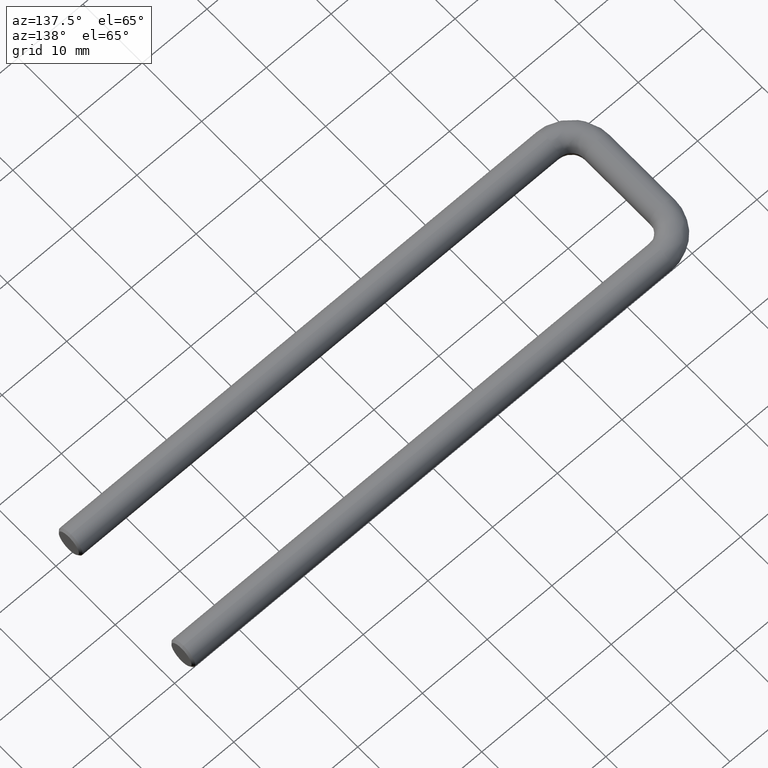
[diagram: clean part render]
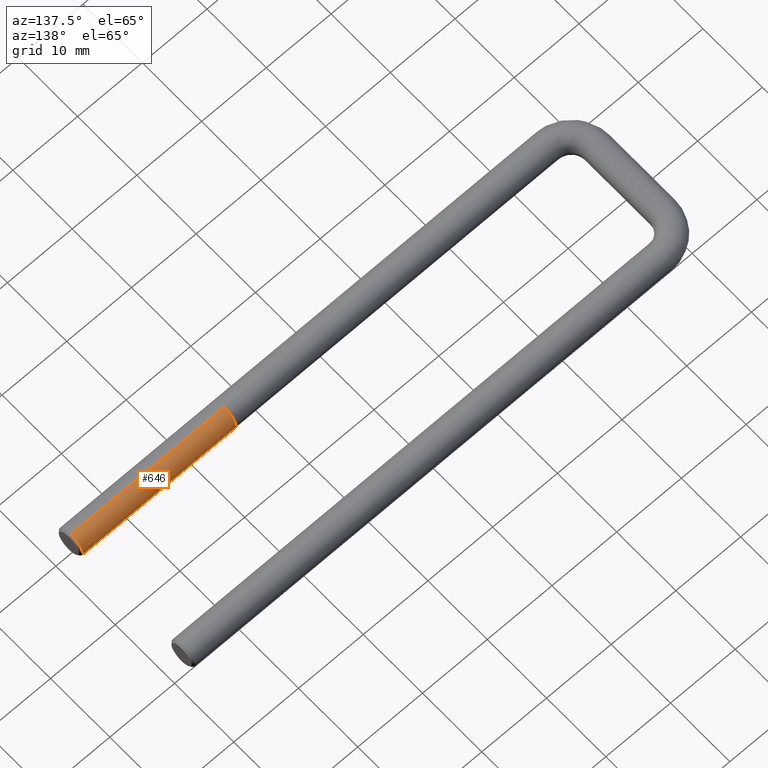
[diagram: same view with one face highlighted and labeled with its STEP entity id]
A machine part, auxiliary view. The second image highlights one B-rep face of the part: STEP entity #646.
In plain terms, the highlighted cylindrical surface (edge-blend (fillet) strip) has radius 2 mm, axis along (-1, -0, -0).
Its self-contained STEP definition (entity closure, byte-faithful):
#8 = ORIENTED_EDGE ( 'NONE', *, *, #249, .T. ) ;
#9 = CARTESIAN_POINT ( 'NONE',  ( 53.99999999999999300, 2.449293598294706400E-016, -2.000000000000000000 ) ) ;
#26 = EDGE_LOOP ( 'NONE', ( #544, #225, #8, #608 ) ) ;
#92 = EDGE_CURVE ( 'NONE', #211, #300, #564, .T. ) ;
#114 = DIRECTION ( 'NONE',  ( 0.0000000000000000000, 0.0000000000000000000, 1.000000000000000000 ) ) ;
#117 = CARTESIAN_POINT ( 'NONE',  ( 77.99999999999998600, 0.0000000000000000000, 0.0000000000000000000 ) ) ;
#132 = DIRECTION ( 'NONE',  ( -1.000000000000000000, -0.0000000000000000000, -0.0000000000000000000 ) ) ;
#178 = DIRECTION ( 'NONE',  ( 1.000000000000000000, 0.0000000000000000000, 0.0000000000000000000 ) ) ;
#211 = VERTEX_POINT ( 'NONE', #284 ) ;
#225 = ORIENTED_EDGE ( 'NONE', *, *, #92, .T. ) ;
#249 = EDGE_CURVE ( 'NONE', #300, #342, #669, .T. ) ;
#284 = CARTESIAN_POINT ( 'NONE',  ( 77.70000000000190700, 2.449293598294706400E-016, -2.000000000000000000 ) ) ;
#300 = VERTEX_POINT ( 'NONE', #9 ) ;
#330 = EDGE_CURVE ( 'NONE', #380, #342, #667, .T. ) ;
#342 = VERTEX_POINT ( 'NONE', #463 ) ;
#348 = EDGE_CURVE ( 'NONE', #380, #211, #649, .T. ) ;
#378 = AXIS2_PLACEMENT_3D ( 'NONE', #425, #420, #414 ) ;
#380 = VERTEX_POINT ( 'NONE', #461 ) ;
#399 = CARTESIAN_POINT ( 'NONE',  ( 77.99999999999998600, 2.449293598294706400E-016, -2.000000000000000000 ) ) ;
#414 = DIRECTION ( 'NONE',  ( 0.0000000000000000000, 0.0000000000000000000, -1.000000000000000000 ) ) ;
#420 = DIRECTION ( 'NONE',  ( -1.000000000000000000, 0.0000000000000000000, 0.0000000000000000000 ) ) ;
#425 = CARTESIAN_POINT ( 'NONE',  ( 77.70000000000190700, 0.0000000000000000000, 0.0000000000000000000 ) ) ;
#461 = CARTESIAN_POINT ( 'NONE',  ( 77.70000000000190700, 0.0000000000000000000, 2.000000000000000000 ) ) ;
#463 = CARTESIAN_POINT ( 'NONE',  ( 53.99999999999999300, 0.0000000000000000000, 2.000000000000000000 ) ) ;
#469 = DIRECTION ( 'NONE',  ( -1.000000000000000000, -0.0000000000000000000, -0.0000000000000000000 ) ) ;
#471 = CARTESIAN_POINT ( 'NONE',  ( 77.99999999999998600, 0.0000000000000000000, 2.000000000000000000 ) ) ;
#485 = VECTOR ( 'NONE', #469, 1000.000000000000000 ) ;
#513 = AXIS2_PLACEMENT_3D ( 'NONE', #710, #178, #677 ) ;
#544 = ORIENTED_EDGE ( 'NONE', *, *, #348, .T. ) ;
#557 = VECTOR ( 'NONE', #692, 1000.000000000000000 ) ;
#564 = LINE ( 'NONE', #399, #557 ) ;
#608 = ORIENTED_EDGE ( 'NONE', *, *, #330, .F. ) ;
#610 = CYLINDRICAL_SURFACE ( 'NONE', #697, 2.000000000000000000 ) ;
#625 = FACE_OUTER_BOUND ( 'NONE', #26, .T. ) ;
#646 = ADVANCED_FACE ( 'NONE', ( #625 ), #610, .T. ) ;
#649 = CIRCLE ( 'NONE', #378, 2.000000000000000000 ) ;
#667 = LINE ( 'NONE', #471, #485 ) ;
#669 = CIRCLE ( 'NONE', #513, 2.000000000000000000 ) ;
#677 = DIRECTION ( 'NONE',  ( 0.0000000000000000000, 0.0000000000000000000, -1.000000000000000000 ) ) ;
#692 = DIRECTION ( 'NONE',  ( -1.000000000000000000, -0.0000000000000000000, -0.0000000000000000000 ) ) ;
#697 = AXIS2_PLACEMENT_3D ( 'NONE', #117, #132, #114 ) ;
#710 = CARTESIAN_POINT ( 'NONE',  ( 53.99999999999999300, 0.0000000000000000000, 0.0000000000000000000 ) ) ;